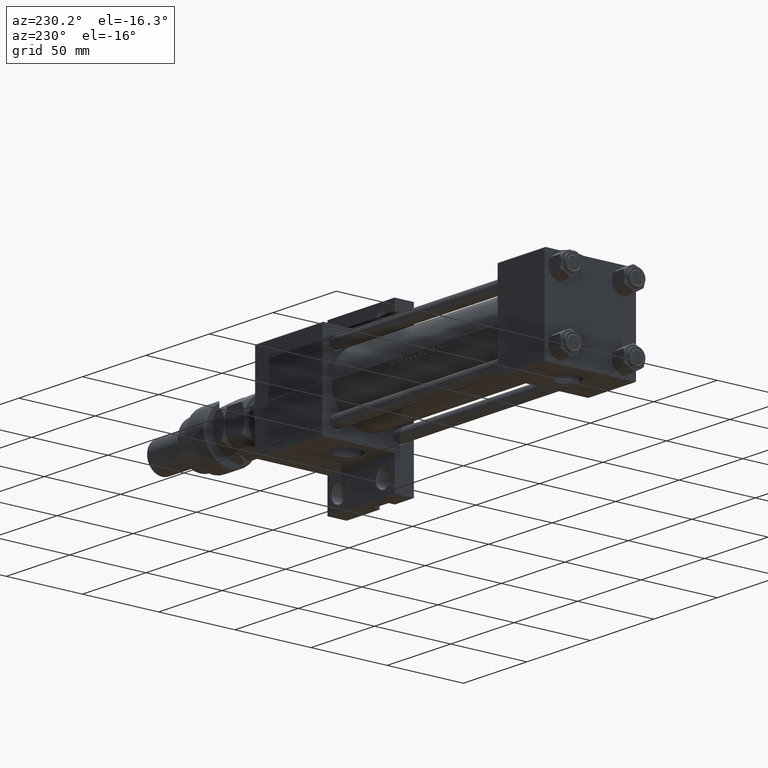
[diagram: clean part render]
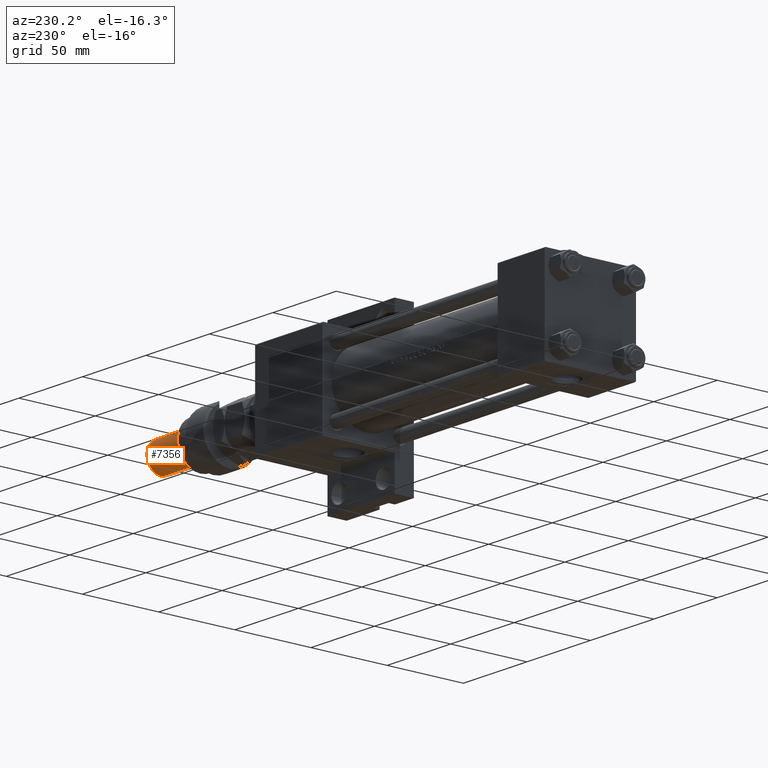
[diagram: same view with one face highlighted and labeled with its STEP entity id]
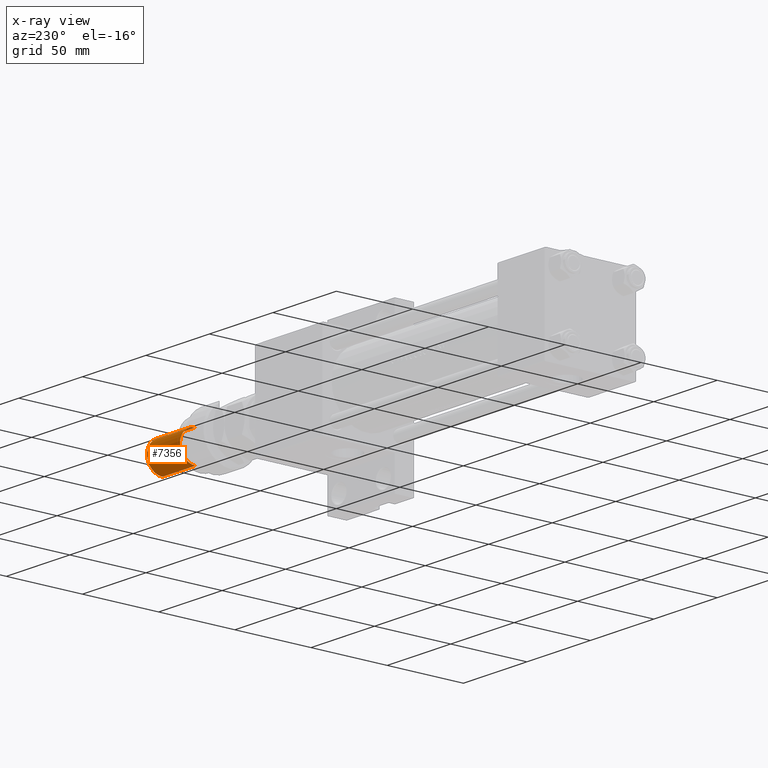
[diagram: x-ray of the same camera — body ghosted, the highlighted face saturated]
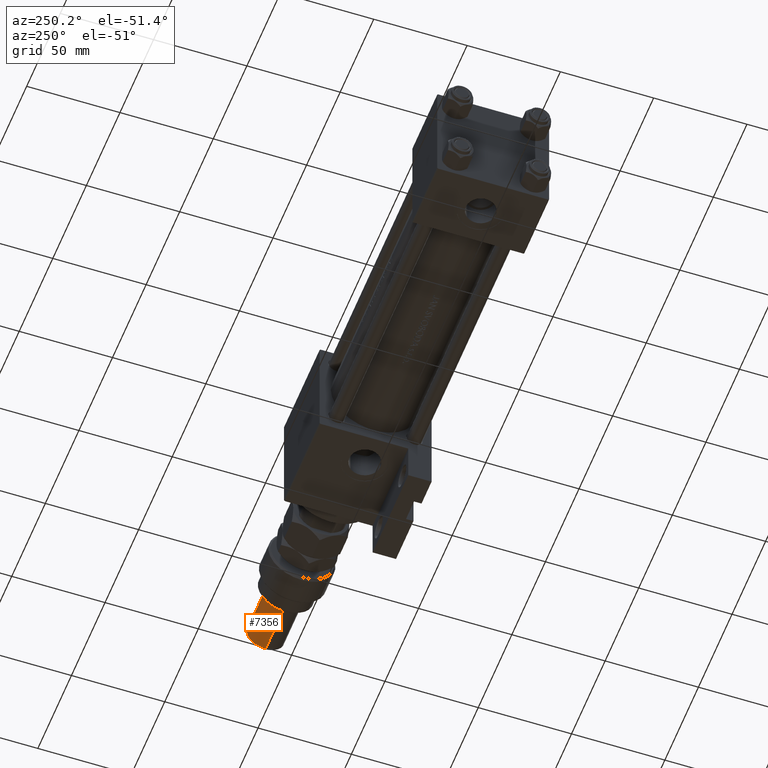
[diagram: same view with one face highlighted and labeled with its STEP entity id]
A machine part, auxiliary view. The second image highlights one B-rep face of the part: STEP entity #7356.
The next image is the same camera in x-ray: the body ghosted, the highlighted face saturated — about 0% of this face is hidden behind the body in this view.
A second angle (auxiliary view) of the same face is appended — the face is thin or edge-on in the first view.
In plain terms, the highlighted cylindrical surface (edge-blend (fillet) strip) has radius 10 mm, axis along (-1, -0, 0).
Its self-contained STEP definition (entity closure, byte-faithful):
#2416 = ORIENTED_EDGE ( 'NONE', *, *, #14672, .T. ) ;
#3834 = CIRCLE ( 'NONE', #24596, 10.00000000000000000 ) ;
#4061 = DIRECTION ( 'NONE',  ( -0.000000000000000000, -0.000000000000000000, -1.000000000000000000 ) ) ;
#4884 = DIRECTION ( 'NONE',  ( 1.000000000000000000, 0.000000000000000000, 0.000000000000000000 ) ) ;
#5527 = VECTOR ( 'NONE', #45891, 1000.000000000000000 ) ;
#7356 = ADVANCED_FACE ( 'NONE', ( #12453 ), #49860, .T. ) ;
#11522 = AXIS2_PLACEMENT_3D ( 'NONE', #13018, #37975, #4884 ) ;
#12453 = FACE_OUTER_BOUND ( 'NONE', #45174, .T. ) ;
#13018 = CARTESIAN_POINT ( 'NONE',  ( 0.000000000000000000, 0.000000000000000000, 54.99999999999998579 ) ) ;
#14047 = EDGE_CURVE ( 'NONE', #49882, #26695, #3834, .T. ) ;
#14179 = EDGE_CURVE ( 'NONE', #36286, #49882, #41820, .T. ) ;
#14672 = EDGE_CURVE ( 'NONE', #17634, #36286, #26231, .T. ) ;
#14825 = AXIS2_PLACEMENT_3D ( 'NONE', #53403, #4061, #20563 ) ;
#16838 = CARTESIAN_POINT ( 'NONE',  ( -10.00000000000000000, 0.000000000000000000, 56.00000000000000711 ) ) ;
#17634 = VERTEX_POINT ( 'NONE', #47937 ) ;
#18530 = CARTESIAN_POINT ( 'NONE',  ( 0.000000000000000000, 0.000000000000000000, 29.00000000000000711 ) ) ;
#20563 = DIRECTION ( 'NONE',  ( -1.000000000000000000, 0.000000000000000000, 0.000000000000000000 ) ) ;
#24193 = LINE ( 'NONE', #16838, #31962 ) ;
#24562 = CARTESIAN_POINT ( 'NONE',  ( 10.00000000000000000, 1.224646799147353256E-15, 54.99999999999998579 ) ) ;
#24596 = AXIS2_PLACEMENT_3D ( 'NONE', #18530, #52161, #47548 ) ;
#26231 = CIRCLE ( 'NONE', #11522, 10.00000000000000000 ) ;
#26695 = VERTEX_POINT ( 'NONE', #42696 ) ;
#29196 = ORIENTED_EDGE ( 'NONE', *, *, #14047, .T. ) ;
#31962 = VECTOR ( 'NONE', #32604, 1000.000000000000000 ) ;
#32604 = DIRECTION ( 'NONE',  ( -0.000000000000000000, -0.000000000000000000, -1.000000000000000000 ) ) ;
#33397 = EDGE_CURVE ( 'NONE', #17634, #26695, #24193, .T. ) ;
#33838 = ORIENTED_EDGE ( 'NONE', *, *, #33397, .F. ) ;
#36286 = VERTEX_POINT ( 'NONE', #24562 ) ;
#37975 = DIRECTION ( 'NONE',  ( 0.000000000000000000, 0.000000000000000000, -1.000000000000000000 ) ) ;
#41281 = CARTESIAN_POINT ( 'NONE',  ( 10.00000000000000000, 1.224646799147353256E-15, 56.00000000000000711 ) ) ;
#41820 = LINE ( 'NONE', #41281, #5527 ) ;
#42696 = CARTESIAN_POINT ( 'NONE',  ( -10.00000000000000000, 0.000000000000000000, 29.00000000000000711 ) ) ;
#44132 = ORIENTED_EDGE ( 'NONE', *, *, #14179, .T. ) ;
#45174 = EDGE_LOOP ( 'NONE', ( #2416, #44132, #29196, #33838 ) ) ;
#45891 = DIRECTION ( 'NONE',  ( -0.000000000000000000, -0.000000000000000000, -1.000000000000000000 ) ) ;
#47548 = DIRECTION ( 'NONE',  ( 1.000000000000000000, 0.000000000000000000, 0.000000000000000000 ) ) ;
#47937 = CARTESIAN_POINT ( 'NONE',  ( -10.00000000000000000, 0.000000000000000000, 54.99999999999998579 ) ) ;
#49860 = CYLINDRICAL_SURFACE ( 'NONE', #14825, 10.00000000000000000 ) ;
#49882 = VERTEX_POINT ( 'NONE', #53223 ) ;
#52161 = DIRECTION ( 'NONE',  ( -0.000000000000000000, -0.000000000000000000, 1.000000000000000000 ) ) ;
#53223 = CARTESIAN_POINT ( 'NONE',  ( 10.00000000000000000, 1.224646799147353256E-15, 29.00000000000000711 ) ) ;
#53403 = CARTESIAN_POINT ( 'NONE',  ( 0.000000000000000000, 0.000000000000000000, 56.00000000000000711 ) ) ;